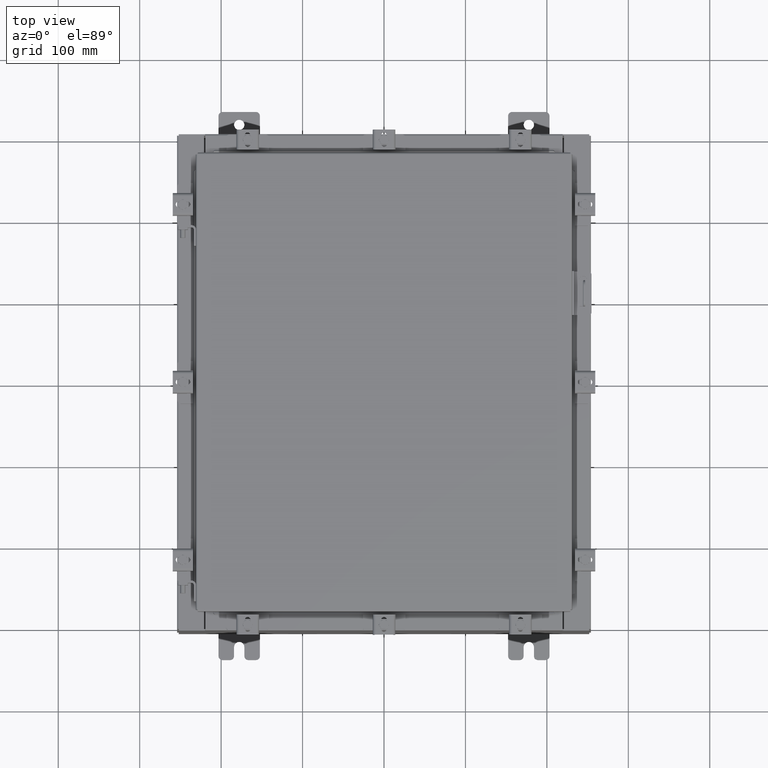
[diagram: clean part render]
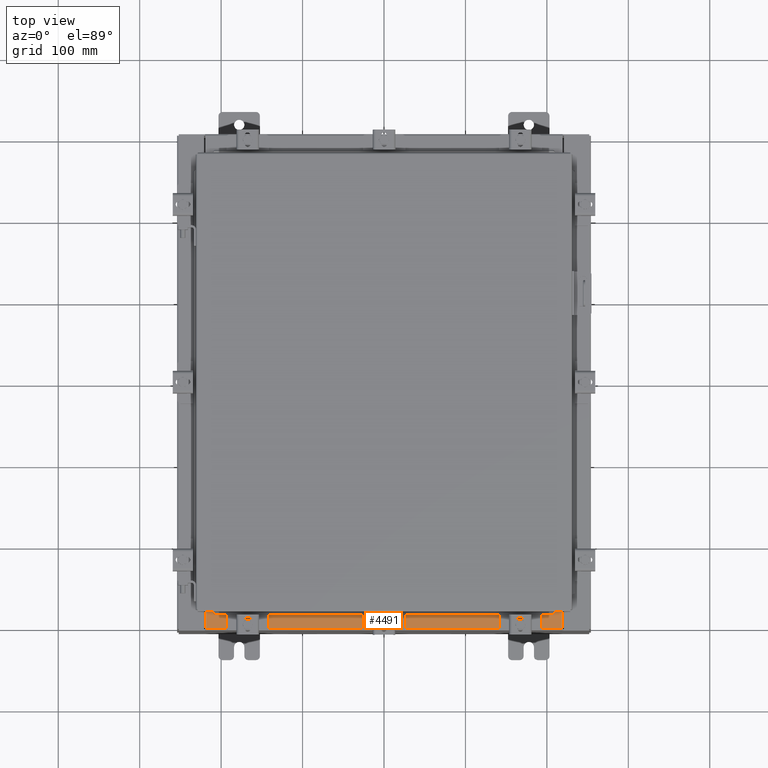
[diagram: same view with one face highlighted and labeled with its STEP entity id]
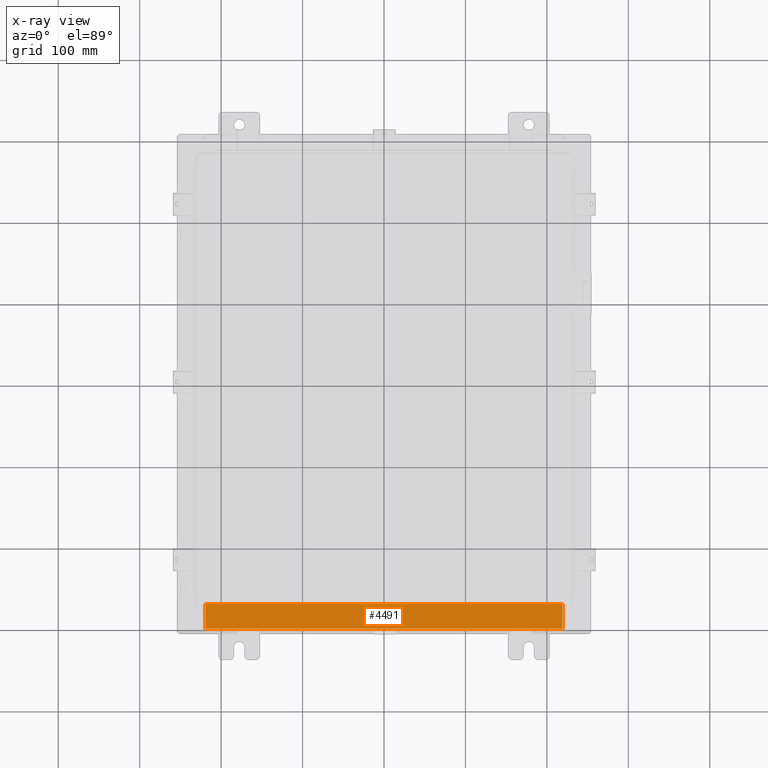
[diagram: x-ray of the same camera — body ghosted, the highlighted face saturated]
A machine part, top view. The second image highlights one B-rep face of the part: STEP entity #4491.
The next image is the same camera in x-ray: the body ghosted, the highlighted face saturated — about 0% of this face is hidden behind the body in this view.
In plain terms, the highlighted planar face has unit normal (-0, -0, 1).
Its self-contained STEP definition (entity closure, byte-faithful):
#799 = LINE ( 'NONE', #12605, #12647 ) ;
#2530 = EDGE_CURVE ( 'NONE', #3416, #12866, #11387, .T. ) ;
#2762 = VECTOR ( 'NONE', #7519, 39.37007874015748100 ) ;
#2879 = EDGE_LOOP ( 'NONE', ( #6797, #9320, #16705, #4669 ) ) ;
#3416 = VERTEX_POINT ( 'NONE', #6832 ) ;
#3857 = VERTEX_POINT ( 'NONE', #13271 ) ;
#4491 = ADVANCED_FACE ( 'NONE', ( #16400 ), #11588, .T. ) ;
#4669 = ORIENTED_EDGE ( 'NONE', *, *, #9904, .T. ) ;
#5140 = CARTESIAN_POINT ( 'NONE',  ( 0.0000000000000000000, 1.782631094477737600E-014, 5.000000000000000000 ) ) ;
#5318 = VECTOR ( 'NONE', #9788, 39.37007874015748100 ) ;
#5855 = LINE ( 'NONE', #17718, #5318 ) ;
#6797 = ORIENTED_EDGE ( 'NONE', *, *, #7664, .F. ) ;
#6832 = CARTESIAN_POINT ( 'NONE',  ( 8.637200000000000000, -1.287299999999999900, 5.000000000000004400 ) ) ;
#7070 = CARTESIAN_POINT ( 'NONE',  ( 8.637200000000000000, -1.287299999999999900, 5.000000000000003600 ) ) ;
#7273 = LINE ( 'NONE', #19332, #12101 ) ;
#7519 = DIRECTION ( 'NONE',  ( -1.000000000000000000, 0.0000000000000000000, 0.0000000000000000000 ) ) ;
#7664 = EDGE_CURVE ( 'NONE', #12866, #3857, #799, .T. ) ;
#8406 = DIRECTION ( 'NONE',  ( 0.0000000000000000000, 3.566381192773190000E-015, 1.000000000000000000 ) ) ;
#9320 = ORIENTED_EDGE ( 'NONE', *, *, #2530, .F. ) ;
#9676 = VERTEX_POINT ( 'NONE', #13874 ) ;
#9781 = DIRECTION ( 'NONE',  ( -1.000000000000000000, -6.325772226333218300E-017, 2.256011509776178200E-031 ) ) ;
#9788 = DIRECTION ( 'NONE',  ( -0.0000000000000000000, -1.000000000000000000, 3.566381192773190000E-015 ) ) ;
#9904 = EDGE_CURVE ( 'NONE', #9676, #3857, #7273, .T. ) ;
#11013 = DIRECTION ( 'NONE',  ( -0.0000000000000000000, 1.000000000000000000, -3.566381192773190000E-015 ) ) ;
#11387 = LINE ( 'NONE', #7070, #2762 ) ;
#11588 = PLANE ( 'NONE',  #16345 ) ;
#12101 = VECTOR ( 'NONE', #9781, 39.37007874015748100 ) ;
#12605 = CARTESIAN_POINT ( 'NONE',  ( -8.637200000000000000, -0.07469999999999973900, 5.000000000000000000 ) ) ;
#12647 = VECTOR ( 'NONE', #11013, 39.37007874015748100 ) ;
#12866 = VERTEX_POINT ( 'NONE', #15676 ) ;
#13271 = CARTESIAN_POINT ( 'NONE',  ( -8.637200000000000000, -0.08770000000000081900, 5.000000000000000000 ) ) ;
#13874 = CARTESIAN_POINT ( 'NONE',  ( 8.637200000000000000, -0.08770000000000047200, 5.000000000000000000 ) ) ;
#15676 = CARTESIAN_POINT ( 'NONE',  ( -8.637200000000000000, -1.287299999999999200, 5.000000000000004400 ) ) ;
#16345 = AXIS2_PLACEMENT_3D ( 'NONE', #5140, #8406, #19606 ) ;
#16400 = FACE_OUTER_BOUND ( 'NONE', #2879, .T. ) ;
#16705 = ORIENTED_EDGE ( 'NONE', *, *, #18443, .F. ) ;
#17718 = CARTESIAN_POINT ( 'NONE',  ( 8.637200000000000000, -1.300299999999999800, 5.000000000000004400 ) ) ;
#18443 = EDGE_CURVE ( 'NONE', #9676, #3416, #5855, .T. ) ;
#19332 = CARTESIAN_POINT ( 'NONE',  ( 5.547702242495411600E-018, -0.08770000000000081900, 5.000000000000000000 ) ) ;
#19606 = DIRECTION ( 'NONE',  ( 0.0000000000000000000, -1.000000000000000000, 3.566381192773190000E-015 ) ) ;